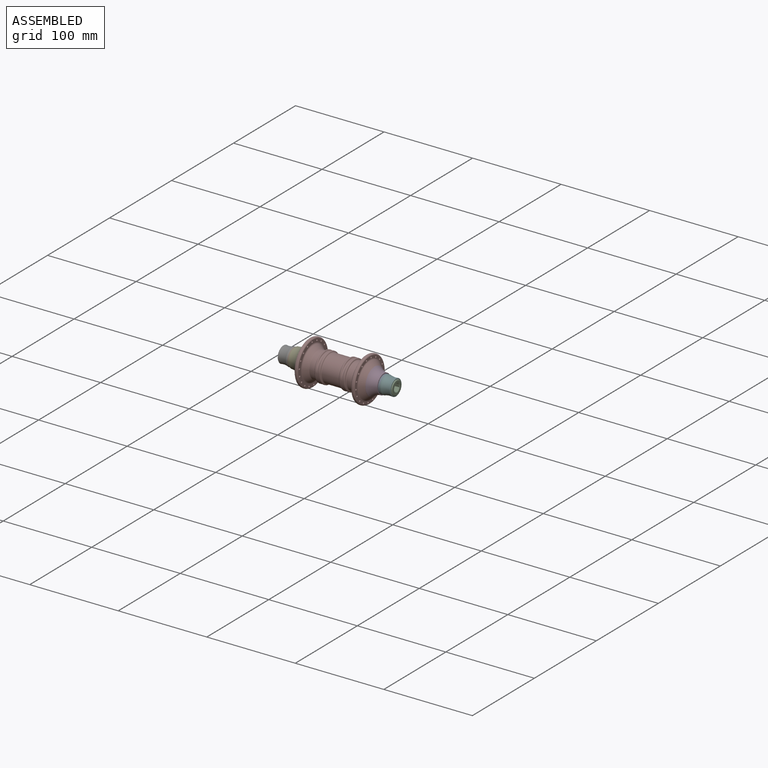
[diagram: assembled view]
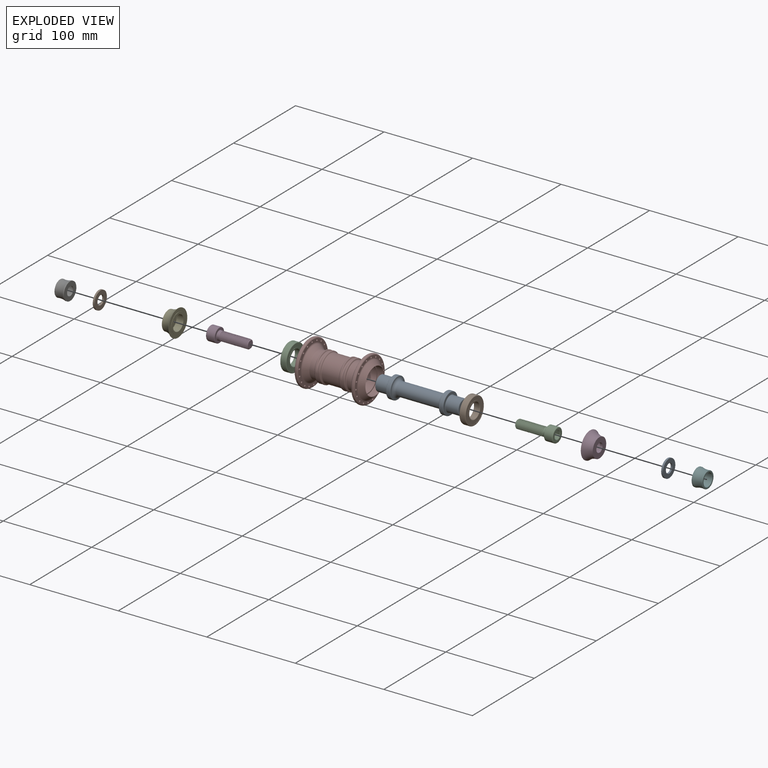
[diagram: exploded view]
GUIDED TOUR — FREECAD ASSEMBLY "Bike_wheel_Hub"

This assembly has 12 components, labeled P0..P11 below (a component is one placed body or linked part; the same part can appear more than once), held together by 11 modeled joints. A joint is a constraint between two components; its type names the relative motion it leaves free:
  FASTENED — locks the two components together rigidly (no relative motion),
  REVOLUTE — leaves rotation about the listed axis free (a hinge).
Axis/direction vectors are unit vectors and 'through' points are millimeter coordinates, both in the assembly's world frame.

MATES
  1. REVOLUTE [Revolute] "Joint": P7 <-> P0, axis (1.000, 0.000, 0.000) through (0.00, 0.00, 0.00) mm
  2. FASTENED [Fixed] "Joint001": P7 <-> P2, direction (1.000, 0.000, 0.000) through (-32.10, 0.00, 0.00) mm
  3. FASTENED [Fixed] "Joint002": P1 <-> P7, direction (1.000, 0.000, 0.000) through (32.10, 0.00, 0.00) mm
  4. FASTENED [Fixed] "Joint003": P7 <-> P3, direction (1.000, 0.000, 0.000) through (39.60, 0.00, 0.00) mm
  5. FASTENED [Fixed] "Joint004": P4 <-> P7, direction (-1.000, 0.000, 0.000) through (-39.60, 0.00, 0.00) mm
  6. FASTENED [Fixed] "Joint005": P9 <-> P4, direction (1.000, 0.000, 0.000) through (-50.20, 0.00, 0.00) mm
  7. FASTENED [Fixed] "Joint006": P8 <-> P3, direction (-1.000, 0.000, 0.000) through (50.20, 0.00, 0.00) mm
  8. FASTENED [Fixed] "Joint007": P5 <-> P8, direction (-1.000, 0.000, 0.000) through (52.20, 0.00, 0.00) mm
  9. FASTENED [Fixed] "Joint008": P9 <-> P6, direction (1.000, 0.000, 0.000) through (-52.20, 0.00, 0.00) mm
  10. FASTENED [Fixed] "Joint009": P11 <-> P6, direction (-1.000, 0.000, 0.000) through (-63.70, 0.00, 0.00) mm
  11. FASTENED [Fixed] "Joint010": P10 <-> P5, direction (1.000, 0.000, 0.000) through (63.70, 0.00, 0.00) mm

ASSEMBLY ORDER
  1. P7 — the base component [order heuristic]
  2. P0 [order heuristic]
  3. P1 [order heuristic]
  4. P2 [order heuristic]
  5. P3 [order heuristic]
  6. P4 [order heuristic]
  7. P8 [order heuristic]
  8. P9 [order heuristic]
  9. P5 [order heuristic]
  10. P6 [order heuristic]
  11. P10 [order heuristic]
  12. P11 [order heuristic]
Order-tag legend:
  [order heuristic] — this assembly is geometrically interlocked (no collision-free removal order exists), so components are listed in mate-graph order; insertion feasibility is not verified.

Of the 12 components, 6 carry a construction recipe — the FreeCAD feature program (sketches with constraints, then the solid features that consume them) that regenerates the part from scratch, quoted from this document or from the linked companion document it references; the rest are supplied as boundary geometry only. The tour below walks the components in assembly order: each is shown spotlighted twice — in the assembled view, then in the exploded view, where a leader line traces a displaced component back to its assembled socket (components that stay in place when exploded have no leader line; saturated green if recipe-attached, orange if geometry-only; every other component desaturated gray) — followed by its recipe or geometry summary and the mates that hold it.
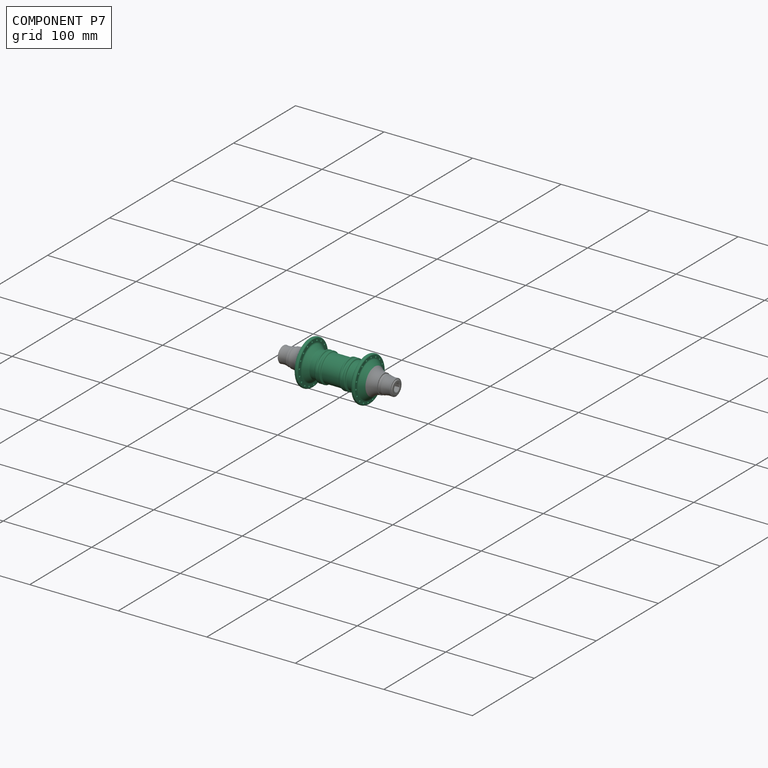
[diagram: component P7 — assembled]
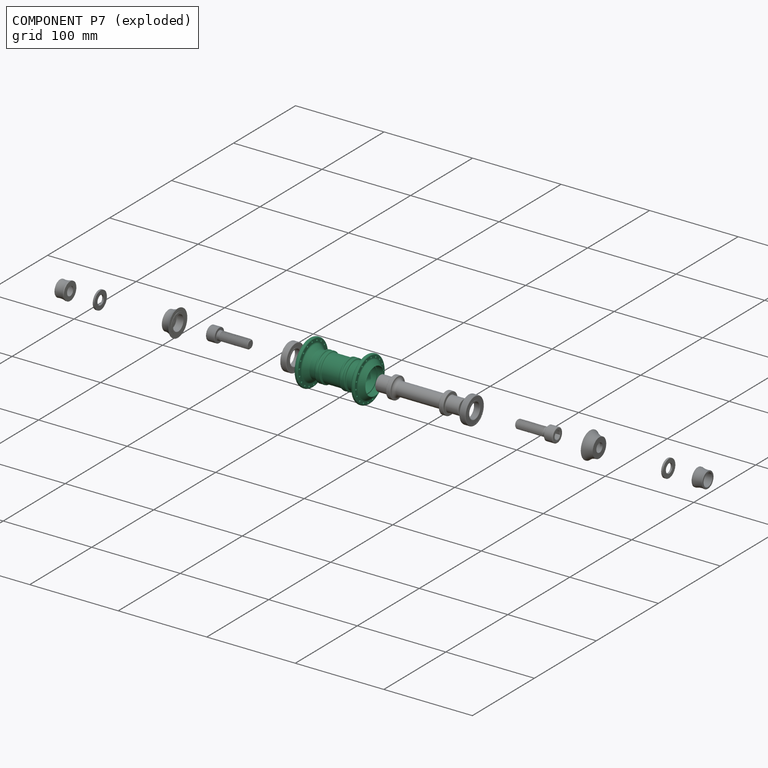
[diagram: component P7 — exploded]
COMPONENT P7 — recipe-attached ("Hub_cage001", modeled in this document).
Held by: REVOLUTE mate "Joint" to P0; FASTENED mate "Joint001" to P2; FASTENED mate "Joint002" to P1; FASTENED mate "Joint003" to P3; FASTENED mate "Joint004" to P4.
Construction recipe (the document's own serialized feature program — sketch geometry with constraints, then the solid features built on it; lengths are millimeters unless a unit is written):

FEATURE [Sketcher::SketchObject] Sketch002
  ArcFitTolerance = 1e-06
  AttachmentSupport = -> [XZ_Plane001]
  FullyConstrained = true
  MakeInternals = false
  MapMode = 5
  Placement = pos=(0,0,0) rot=(1,0,0;1.5708rad)
  sketch-geometry (31):
    g0: LineSegment StartX=0 StartY=0 StartZ=0 EndX=-39.6 EndY=0 EndZ=0
    g1: LineSegment StartX=-39.6 StartY=0 StartZ=0 EndX=-39.6 EndY=15 EndZ=0
    g2: LineSegment StartX=-39.6 StartY=15 StartZ=0 EndX=-34.668 EndY=19.4036 EndZ=0
    g3: LineSegment StartX=-34 StartY=20.8955 StartZ=0 EndX=-34 EndY=23.6 EndZ=0
    g4: LineSegment StartX=-32.6 StartY=25 StartZ=0 EndX=-31.4 EndY=25 EndZ=0
    g5: LineSegment StartX=-30 StartY=23.6 StartZ=0 EndX=-30 EndY=20.0226 EndZ=0
    g6: LineSegment StartX=-29.1711 StartY=18.4013 StartZ=0 EndX=-24.2621 EndY=14.8556 EndZ=0
    g7: LineSegment StartX=-23.6766 StartY=14.6662 StartZ=0 EndX=-18.3166 EndY=14.6662 EndZ=0
    g8: LineSegment StartX=-17.3249 StartY=15.5375 StartZ=0 EndX=-17.3131 EndY=15.6287 EndZ=0
    g9: LineSegment StartX=-16.3214 StartY=16.5 StartZ=0 EndX=-11.4387 EndY=16.5 EndZ=0
    g10: LineSegment StartX=-10.4829 StartY=15.794 StartZ=0 EndX=-10.4558 EndY=15.706 EndZ=0
    g11: LineSegment StartX=-9.5 StartY=15 StartZ=0 EndX=0 EndY=15 EndZ=0
    g12: LineSegment StartX=0 StartY=15 StartZ=0 EndX=0 EndY=0 EndZ=0
    g13: ArcOfCircle CenterX=-23.6766 CenterY=15.6662 CenterZ=0 NormalX=0 NormalY=0 NormalZ=1 AngleXU=0 Radius=1 StartAngle=4.08686 EndAngle=4.71239
    g14: GeomPoint [constr] X=-24 Y=14.6662 Z=0
    g15: ArcOfCircle CenterX=-18.3166 CenterY=15.6662 CenterZ=0 NormalX=0 NormalY=0 NormalZ=1 AngleXU=0 Radius=1 StartAngle=4.71239 EndAngle=6.1541
    g16: GeomPoint [constr] X=-17.438 Y=14.6662 Z=0
    g17: ArcOfCircle CenterX=-16.3214 CenterY=15.5 CenterZ=0 NormalX=0 NormalY=0 NormalZ=1 AngleXU=0 Radius=1 StartAngle=1.5708 EndAngle=3.01251
    g18: GeomPoint [constr] X=-17.2 Y=16.5 Z=0
    g19: ArcOfCircle CenterX=-11.4387 CenterY=15.5 CenterZ=0 NormalX=0 NormalY=0 NormalZ=1 AngleXU=0 Radius=1 StartAngle=0.298369 EndAngle=1.5708
    g20: GeomPoint [constr] X=-10.7 Y=16.5 Z=0
    g21: ArcOfCircle CenterX=-9.5 CenterY=16 CenterZ=0 NormalX=0 NormalY=0 NormalZ=1 AngleXU=0 Radius=1 StartAngle=3.43996 EndAngle=4.71239
    g22: GeomPoint [constr] X=-10.2387 Y=15 Z=0
    g23: ArcOfCircle CenterX=-28 CenterY=20.0226 CenterZ=0 NormalX=0 NormalY=0 NormalZ=1 AngleXU=0 Radius=2 StartAngle=3.14159 EndAngle=4.08686
    g24: GeomPoint [constr] X=-30 Y=19 Z=0
    g25: ArcOfCircle CenterX=-31.4 CenterY=23.6 CenterZ=0 NormalX=0 NormalY=0 NormalZ=1 AngleXU=0 Radius=1.4 StartAngle=-9e-16 EndAngle=1.5708
    g26: GeomPoint [constr] X=-30 Y=25 Z=0
    g27: ArcOfCircle CenterX=-32.6 CenterY=23.6 CenterZ=0 NormalX=0 NormalY=0 NormalZ=1 AngleXU=0 Radius=1.4 StartAngle=1.5708 EndAngle=3.14159
    g28: GeomPoint [constr] X=-34 Y=25 Z=0
    g29: ArcOfCircle CenterX=-36 CenterY=20.8955 CenterZ=0 NormalX=0 NormalY=0 NormalZ=1 AngleXU=0 Radius=2 StartAngle=5.44124 EndAngle=6.28319
    g30: GeomPoint [constr] X=-34 Y=20 Z=0
  constraints (74):
    c: Coincident(g-1,g0)
    c: PointOnObject(g0,g-1)
    c: Coincident(g0,g1)
    c: Vertical(g1)
    c: Coincident(g1,g2)
    c: Vertical(g3)
    c: Horizontal(g4)
    c: Vertical(g5)
    c: Horizontal(g7)
    c: Horizontal(g9)
    c: Horizontal(g11)
    c: Coincident(g11,g12)
    c: Coincident(g12,g0)
    c: Vertical(g12)
    c: DistanceY(g1,g1) = 15
    c: DistanceX(g0,g0) = 39.6
    c: DistanceY(g-1,g30) = 20
    c: DistanceY(g-1,g28) = 25
    c: DistanceY(g-1,g24) = 19
    c: DistanceX(g28,g-1) = 34
    c: DistanceX(g28,g26) = 4
    c: DistanceX(g14,g-1) = 24
    c: DistanceX(g20,g-1) = 10.7
    c: Distance(g18,g20) = 6.5
    c: DistanceY(g-1,g20) = 16.5
    c: Equal(g1,g12)
    c: PointOnObject(g14,g6)
    c: PointOnObject(g14,g7)
    c: Tangent(g6,g13) = -1.5708
    c: Tangent(g7,g13) = -1.5708
    c: PointOnObject(g16,g7)
    c: PointOnObject(g16,g8)
    c: Tangent(g7,g15) = -1.5708
    c: Tangent(g8,g15) = -1.5708
    c: PointOnObject(g18,g8)
    c: PointOnObject(g18,g9)
    c: Tangent(g8,g17) = 1.5708
    c: Tangent(g9,g17) = 1.5708
    c: PointOnObject(g20,g9)
    c: PointOnObject(g20,g10)
    c: Tangent(g9,g19) = 1.5708
    c: Tangent(g10,g19) = 1.5708
    c: PointOnObject(g22,g10)
    c: PointOnObject(g22,g11)
    c: Tangent(g10,g21) = -1.5708
    c: Tangent(g11,g21) = -1.5708
    c: Radius(g13) = 1
    c: Equal(g13,g15)
    c: Equal(g15,g17)
    c: Equal(g17,g19)
    c: Equal(g19,g21)
    c: Equal(g8,g10)
    c: DistanceX(g11,g11) = 9.5
    c: DistanceX(g7,g7) = 5.36
    c: PointOnObject(g24,g5)
    c: PointOnObject(g24,g6)
    c: Tangent(g5,g23) = -1.5708
    c: Tangent(g6,g23) = -1.5708
    c: PointOnObject(g26,g4)
    c: PointOnObject(g26,g5)
    c: Tangent(g4,g25) = 1.5708
    c: Tangent(g5,g25) = 1.5708
    c: PointOnObject(g28,g3)
    c: PointOnObject(g28,g4)
    c: Tangent(g3,g27) = 1.5708
    c: Tangent(g4,g27) = 1.5708
    c: PointOnObject(g30,g2)
    c: PointOnObject(g30,g3)
    c: Tangent(g2,g29) = -1.5708
    c: Tangent(g3,g29) = -1.5708
    c: Radius(g23) = 2
    c: Radius(g25) = 1.4
    c: Radius(g27) = 1.4
    c: Radius(g29) = 2
FEATURE [PartDesign::Revolution] Revolution001
  Angle = 360
  Angle2 = 60
  Axis = (1,0,0)
  Base = (0,0,0)
  Placement = pos=(0,0,0) rot=(1,0,0;1.5708rad)
  Profile = -> Sketch002
  ReferenceAxis = -> X_Axis001
  Refine = true
  Suppressed = false
  Type = 0
FEATURE [Sketcher::SketchObject] Sketch003
  ArcFitTolerance = 1e-06
  AttachmentSupport = -> [Revolution001]
  FullyConstrained = true
  MakeInternals = false
  MapMode = 5
  Placement = pos=(-39.6,0,0) rot=(0.707107,0,-0.707107;3.14159rad)
  sketch-geometry (1):
    g0: Circle CenterX=0 CenterY=0 CenterZ=0 NormalX=0 NormalY=0 NormalZ=1 AngleXU=0 Radius=15
  constraints (2):
    c: Diameter(g0) = 30
    c: Coincident(g0,g-1)
FEATURE [PartDesign::Pocket] Pocket001
  BaseFeature = -> Revolution001
  Direction = (1,0,2e-16)
  Length = 7.5
  Length2 = 5
  Placement = pos=(0,0,0) rot=(1,0,0;1.5708rad)
  Profile = -> Sketch003
  ReferenceAxis = -> Sketch003 [N_Axis]
  Refine = true
  Suppressed = false
  Type = 0
FEATURE [Sketcher::SketchObject] Sketch004
  ArcFitTolerance = 1e-06
  AttachmentSupport = -> [Pocket001]
  FullyConstrained = true
  MakeInternals = false
  MapMode = 5
  Placement = pos=(0,0,0) rot=(0.707107,0,0.707107;3.14159rad)
  sketch-geometry (1):
    g0: Circle CenterX=0 CenterY=0 CenterZ=0 NormalX=0 NormalY=0 NormalZ=1 AngleXU=0 Radius=14
  constraints (2):
    c: Diameter(g0) = 28
    c: Coincident(g0,g-1)
FEATURE [PartDesign::Pocket] Pocket002
  BaseFeature = -> Pocket001
  Direction = (-1,0,2e-16)
  Length = 5
  Length2 = 5
  Placement = pos=(0,0,0) rot=(1,0,0;1.5708rad)
  Profile = -> Sketch004
  ReferenceAxis = -> Sketch004 [N_Axis]
  Refine = true
  Suppressed = false
  Type = 1
FEATURE [PartDesign::Plane] DatumPlane
  AttachmentOffset = pos=(0,0,-13.95) rot=(0,0,1;0rad)
  AttachmentSupport = -> [Pocket002]
  Length = 60
  MapMode = 5
  Placement = pos=(-13.95,0,3.1e-15) rot=(0.707107,0,0.707107;3.14159rad)
  ResizeMode = 0
  Width = 60
FEATURE [Sketcher::SketchObject] Sketch005
  ArcFitTolerance = 1e-06
  AttachmentSupport = -> [DatumPlane]
  FullyConstrained = true
  MakeInternals = false
  MapMode = 5
  Placement = pos=(-13.95,0,3.1e-15) rot=(0.707107,0,0.707107;3.14159rad)
  sketch-geometry (5):
    g0: Ellipse CenterX=0 CenterY=0 CenterZ=0 NormalX=0 NormalY=0 NormalZ=1 MajorRadius=18.1 MinorRadius=16.4 AngleXU=-1.5708
    g1: LineSegment [constr] StartX=6.27002e-06 StartY=-18.1 StartZ=0 EndX=-6.27002e-06 EndY=18.1 EndZ=0
    g2: LineSegment [constr] StartX=16.4 StartY=5.68113e-06 StartZ=0 EndX=-16.4 EndY=-5.68113e-06 EndZ=0
    g3: GeomPoint [constr] X=2.65292e-06 Y=-7.65833 Z=0
    g4: GeomPoint [constr] X=-2.65292e-06 Y=7.65833 Z=0
  constraints (5):
    c: InternalAlignment(g1-g4 -> g0) x4
    c: Distance(g0,g2) = 16.4
    c: Angle(g2) = 3.14159
    c: Distance(g0,g1) = 18.1
    c: Coincident(g0,g-1)
FEATURE [Sketcher::SketchObject] Sketch006
  ArcFitTolerance = 1e-06
  AttachmentSupport = -> [XY_Plane001]
  ExternalGeometry = -> [Sketch005]
  FullyConstrained = true
  MakeInternals = false
  MapMode = 5
  sketch-geometry (1):
    g0: Circle CenterX=-13.95 CenterY=18.1 CenterZ=0 NormalX=0 NormalY=0 NormalZ=1 AngleXU=0 Radius=1.5
  constraints (2):
    c: Diameter(g0) = 3
    c: Coincident(g0,g-4)
FEATURE [PartDesign::SubtractivePipe] SubtractivePipe
  AuxilleryCurvelinear = true
  AuxillerySpineTangent = false
  BaseFeature = -> Pocket002
  Binormal = (0,0,0)
  Mode = 0
  Placement = pos=(0,0,0) rot=(1,0,0;1.5708rad)
  Profile = -> Sketch006
  Refine = true
  Spine = -> Sketch005
  SpineTangent = false
  Suppressed = false
  Transformation = 0
  Transition = 0
FEATURE [PartDesign::Mirrored] Mirrored001
  BaseFeature = -> SubtractivePipe
  MirrorPlane = -> Sketch006 [V_Axis]
  Originals = -> [SubtractivePipe]
  Placement = pos=(0,0,0) rot=(1,0,0;1.5708rad)
  Refine = true
  Suppressed = false
  TransformMode = 1
FEATURE [Sketcher::SketchObject] Sketch007
  ArcFitTolerance = 1e-06
  AttachmentSupport = -> [Mirrored001]
  FullyConstrained = true
  MakeInternals = false
  MapMode = 5
  Placement = pos=(-34,0,0) rot=(0.707107,0,-0.707107;3.14159rad)
  sketch-geometry (1):
    g0: Circle CenterX=0 CenterY=22.2 CenterZ=0 NormalX=0 NormalY=0 NormalZ=1 AngleXU=0 Radius=1.1
  constraints (3):
    c: Diameter(g0) = 2.2
    c: PointOnObject(g0,g-2)
    c: DistanceY(g-1,g0) = 22.2
FEATURE [PartDesign::Pocket] Pocket003
  BaseFeature = -> Mirrored001
  Direction = (1,0,2e-16)
  Length = 0
  Length2 = 5
  Placement = pos=(0,0,0) rot=(1,0,0;1.5708rad)
  Profile = -> Sketch007
  ReferenceAxis = -> Sketch007 [N_Axis]
  Refine = true
  Suppressed = false
  Type = 3
  UpToFace = -> Mirrored001 [Face14]
FEATURE [PartDesign::PolarPattern] PolarPattern
  Angle = 360
  Axis = -> Sketch007 [N_Axis]
  BaseFeature = -> Pocket003
  Mode = 0
  Occurrences = 18
  Offset = 120
  Originals = -> [Pocket003]
  Placement = pos=(0,0,0) rot=(1,0,0;1.5708rad)
  Refine = true
  Suppressed = false
  TransformMode = 0
FEATURE [Sketcher::SketchObject] Sketch008
  ArcFitTolerance = 1e-06
  AttachmentSupport = -> [PolarPattern]
  FullyConstrained = true
  MakeInternals = false
  MapMode = 5
  Placement = pos=(34,0,0) rot=(0.707107,0,0.707107;3.14159rad)
  sketch-geometry (2):
    g0: Circle CenterX=-3.85499 CenterY=21.8627 CenterZ=0 NormalX=0 NormalY=0 NormalZ=1 AngleXU=0 Radius=1.1
    g1: LineSegment [constr] StartX=-3.85499 StartY=21.8627 StartZ=0 EndX=0 EndY=0 EndZ=0
  constraints (5):
    c: Diameter(g0) = 2.2
    c: Coincident(g1,g0)
    c: Coincident(g1,g-1)
    c: Distance(g1,g1) = 22.2
    c: Angle(g-2,g1) = 0.174533
FEATURE [PartDesign::Pocket] Pocket004
  BaseFeature = -> PolarPattern
  Direction = (-1,0,2e-16)
  Length = 0
  Length2 = 5
  Placement = pos=(0,0,0) rot=(1,0,0;1.5708rad)
  Profile = -> Sketch008
  ReferenceAxis = -> Sketch008 [N_Axis]
  Refine = true
  Suppressed = false
  Type = 3
  UpToFace = -> PolarPattern [Face53]
FEATURE [PartDesign::PolarPattern] PolarPattern001
  Angle = 360
  Axis = -> X_Axis001
  BaseFeature = -> Pocket004
  Mode = 0
  Occurrences = 18
  Offset = 120
  Originals = -> [Pocket004]
  Placement = pos=(0,0,0) rot=(1,0,0;1.5708rad)
  Refine = true
  Suppressed = false
  TransformMode = 0
FEATURE [PartDesign::Fillet] Fillet
  Base = -> PolarPattern001 [Edge39,Edge41,Edge15,Edge13]
  BaseFeature = -> PolarPattern001
  Placement = pos=(0,0,0) rot=(1,0,0;1.5708rad)
  Radius = 0.3
  Refine = true
  SupportTransform = false
  Suppressed = false
  UseAllEdges = false
FEATURE [PartDesign::Body] Body001  label="Hub_cage"
  AllowCompound = false
  Group = -> [Sketch002,Revolution001,Sketch003,Pocket001,Sketch004,Pocket002,DatumPlane,Sketch005,Sketch006,SubtractivePipe,Mirrored001,Sketch007,Pocket003,PolarPattern,Sketch008,Pocket004,PolarPattern001,Fillet]
  Origin = -> Origin001
  Tip = -> Fillet
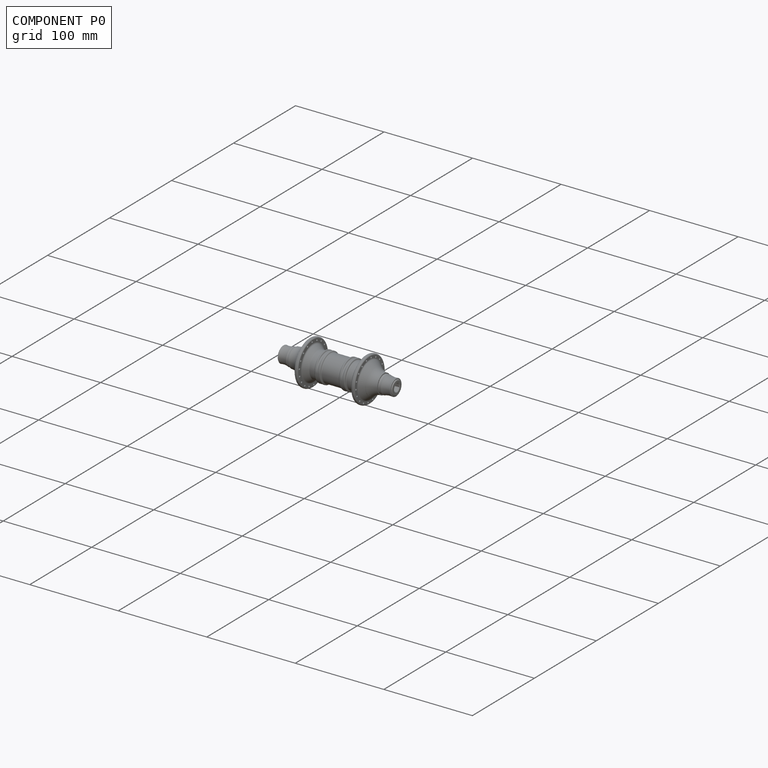
[diagram: component P0 — assembled]
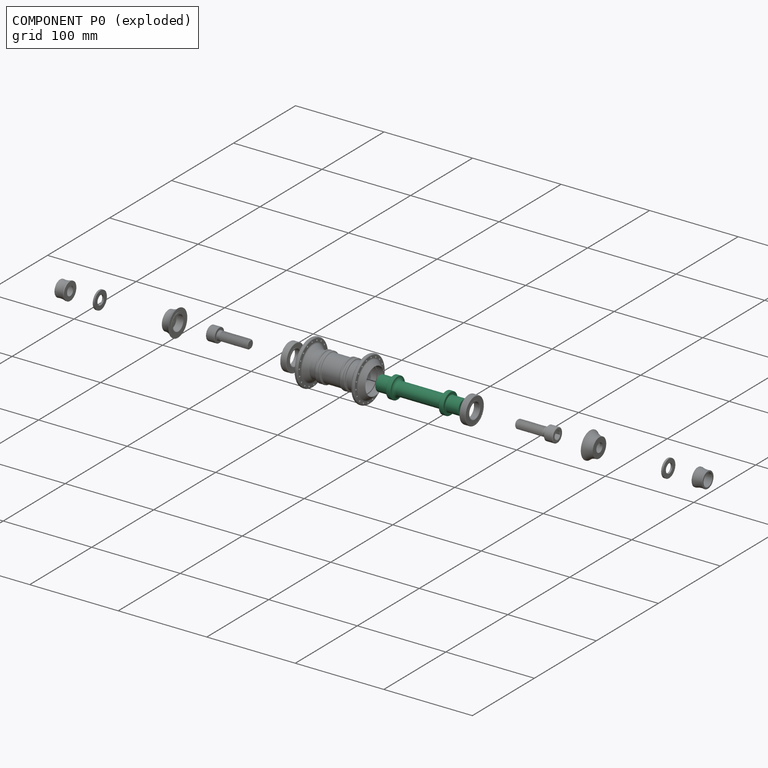
[diagram: component P0 — exploded]
COMPONENT P0 — recipe-attached ("Axle001", modeled in this document).
Held by: REVOLUTE mate "Joint" to P7.
Construction recipe (the document's own serialized feature program — sketch geometry with constraints, then the solid features built on it; lengths are millimeters unless a unit is written):

FEATURE [Sketcher::SketchObject] Sketch
  ArcFitTolerance = 1e-06
  AttachmentSupport = -> [XZ_Plane]
  FullyConstrained = true
  MakeInternals = false
  MapMode = 5
  Placement = pos=(0,0,0) rot=(1,0,0;1.5708rad)
  sketch-geometry (19):
    g0: LineSegment StartX=0 StartY=0 StartZ=0 EndX=-47 EndY=0 EndZ=0
    g1: LineSegment StartX=-47 StartY=0 StartZ=0 EndX=-47 EndY=8 EndZ=0
    g2: LineSegment StartX=-46.5 StartY=8.5 StartZ=0 EndX=-32.8 EndY=8.5 EndZ=0
    g3: LineSegment StartX=-32.3 StartY=9 StartZ=0 EndX=-32.3 EndY=11.5 EndZ=0
    g4: LineSegment StartX=-31.8 StartY=12 StartZ=0 EndX=-27.8 EndY=12 EndZ=0
    g5: LineSegment StartX=-27.3 StartY=11.5 StartZ=0 EndX=-27.3 EndY=11 EndZ=0
    g6: LineSegment StartX=-23.8 StartY=7.5 StartZ=0 EndX=0 EndY=7.5 EndZ=0
    g7: LineSegment StartX=0 StartY=0 StartZ=0 EndX=0 EndY=7.5 EndZ=0
    g8: ArcOfCircle CenterX=-27.8 CenterY=11.5 CenterZ=0 NormalX=0 NormalY=0 NormalZ=1 AngleXU=0 Radius=0.5 StartAngle=-1.8e-15 EndAngle=1.5708
    g9: GeomPoint [constr] X=-27.3 Y=12 Z=0
    g10: ArcOfCircle CenterX=-23.8 CenterY=11 CenterZ=0 NormalX=0 NormalY=0 NormalZ=1 AngleXU=0 Radius=3.5 StartAngle=3.14159 EndAngle=4.71239
    g11: GeomPoint [constr] X=-27.3 Y=7.5 Z=0
    g12: ArcOfCircle CenterX=-32.8 CenterY=9 CenterZ=0 NormalX=0 NormalY=0 NormalZ=1 AngleXU=0 Radius=0.5 StartAngle=4.71239 EndAngle=6.28319
    g13: GeomPoint [constr] X=-32.3 Y=8.5 Z=0
    g14: ArcOfCircle CenterX=-31.8 CenterY=11.5 CenterZ=0 NormalX=0 NormalY=0 NormalZ=1 AngleXU=0 Radius=0.5 StartAngle=1.5708 EndAngle=3.14159
    g15: GeomPoint [constr] X=-32.3 Y=12 Z=0
    g16: ArcOfCircle [constr] CenterX=-46.5 CenterY=8 CenterZ=0 NormalX=0 NormalY=0 NormalZ=1 AngleXU=0 Radius=0.5 StartAngle=1.5708 EndAngle=3.14159
    g17: GeomPoint [constr] X=-47 Y=8.5 Z=0
    g18: LineSegment StartX=-46.5 StartY=8.5 StartZ=0 EndX=-47 EndY=8 EndZ=0
  constraints (45):
    c: Coincident(g-1,g0)
    c: PointOnObject(g0,g-1)
    c: Coincident(g0,g1)
    c: Vertical(g1)
    c: Horizontal(g2)
    c: Vertical(g3)
    c: Horizontal(g4)
    c: Vertical(g5)
    c: PointOnObject(g6,g-2)
    c: Horizontal(g6)
    c: Coincident(g7,g0)
    c: Coincident(g7,g6)
    c: DistanceY(g7,g7) = 7.5
    c: DistanceY(g1,g17) = 8.5
    c: DistanceX(g0,g0) = 47
    c: DistanceY(g-1,g15) = 12
    c: DistanceX(g15,g9) = 5
    c: DistanceX(g15,g-1) = 32.3
    c: PointOnObject(g9,g4)
    c: PointOnObject(g9,g5)
    c: Tangent(g4,g8) = 1.5708
    c: Tangent(g5,g8) = 1.5708
    c: PointOnObject(g11,g5)
    c: PointOnObject(g11,g6)
    c: Tangent(g5,g10) = -1.5708
    c: Tangent(g6,g10) = -1.5708
    c: PointOnObject(g13,g2)
    c: PointOnObject(g13,g3)
    c: Tangent(g2,g12) = -1.5708
    c: Tangent(g3,g12) = -1.5708
    c: PointOnObject(g15,g3)
    c: PointOnObject(g15,g4)
    c: Tangent(g3,g14) = 1.5708
    c: Tangent(g4,g14) = 1.5708
    c: Radius(g10) = 3.5
    c: Radius(g8) = 0.5
    c: Radius(g14) = 0.5
    c: Radius(g12) = 0.5
    c: PointOnObject(g17,g1)
    c: PointOnObject(g17,g2)
    c: Tangent(g1,g16) = 1.5708
    c: Tangent(g2,g16) = 1.5708
    c: Coincident(g18,g1)
    c: Coincident(g18,g2)
    c: Radius(g16) = 0.5
FEATURE [PartDesign::Revolution] Revolution
  Angle = 360
  Angle2 = 60
  Axis = (1,0,0)
  Base = (0,0,0)
  Placement = pos=(0,0,0) rot=(1,0,0;1.5708rad)
  Profile = -> Sketch
  ReferenceAxis = -> X_Axis
  Refine = true
  Suppressed = false
  Type = 0
FEATURE [Sketcher::SketchObject] Sketch001
  ArcFitTolerance = 1e-06
  AttachmentSupport = -> [Revolution]
  FullyConstrained = true
  MakeInternals = false
  MapMode = 5
  Placement = pos=(-47,0,0) rot=(0.707107,0,-0.707107;3.14159rad)
  sketch-geometry (1):
    g0: Circle CenterX=0 CenterY=0 CenterZ=0 NormalX=0 NormalY=0 NormalZ=1 AngleXU=0 Radius=5
  constraints (2):
    c: Diameter(g0) = 10
    c: Coincident(g0,g-1)
FEATURE [PartDesign::Pocket] Pocket
  BaseFeature = -> Revolution
  Direction = (1,0,2e-16)
  Length = 5
  Length2 = 5
  Placement = pos=(0,0,0) rot=(1,0,0;1.5708rad)
  Profile = -> Sketch001
  ReferenceAxis = -> Sketch001 [N_Axis]
  Refine = true
  Suppressed = false
  Type = 1
FEATURE [PartDesign::Mirrored] Mirrored
  BaseFeature = -> Pocket
  MirrorPlane = -> YZ_Plane
  Originals = -> [Pocket]
  Placement = pos=(0,0,0) rot=(1,0,0;1.5708rad)
  Refine = true
  Suppressed = false
  TransformMode = 1
FEATURE [PartDesign::Body] Body  label="Axle"
  AllowCompound = false
  Group = -> [Sketch,Revolution,Sketch001,Pocket,Mirrored]
  Origin = -> Origin
  Tip = -> Mirrored
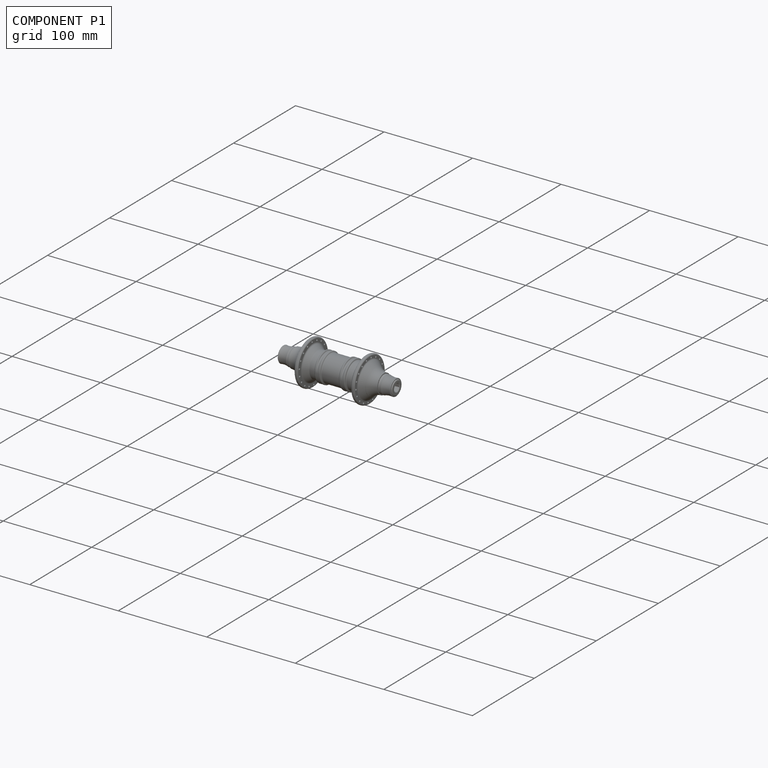
[diagram: component P1 — assembled]
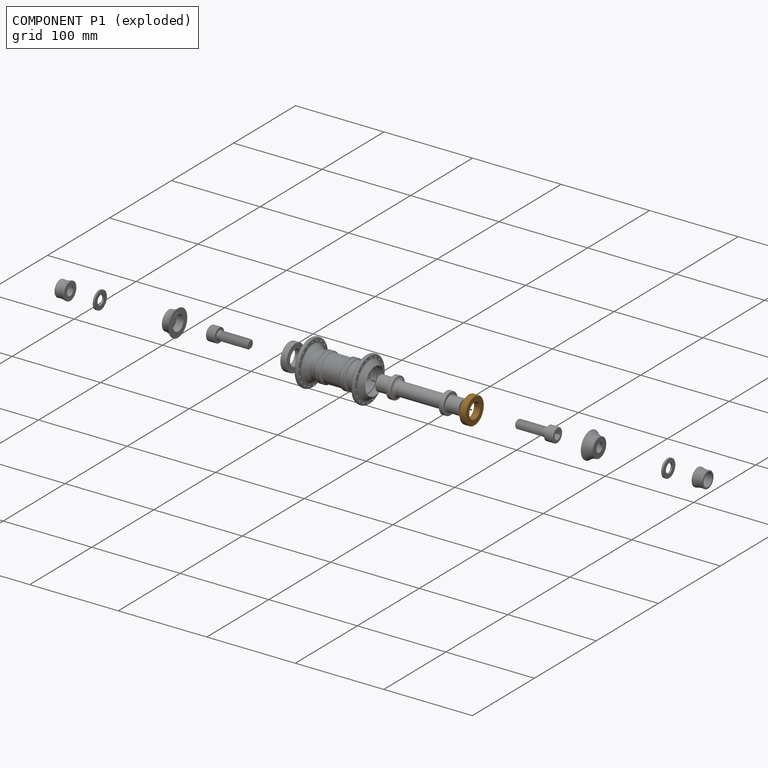
[diagram: component P1 — exploded]
COMPONENT P1 — geometry summary ("Ball_Bearing001"; no construction recipe available for this part):
  bounding box: 30.0 x 30.0 x 7.0 mm
  tessellated surface: 117,994 triangles
  volume: 2172 mm^3 (34% of its bounding box)
  symmetry: mirror-symmetric across its x mid-plane
Held by: FASTENED mate "Joint002" to P7.
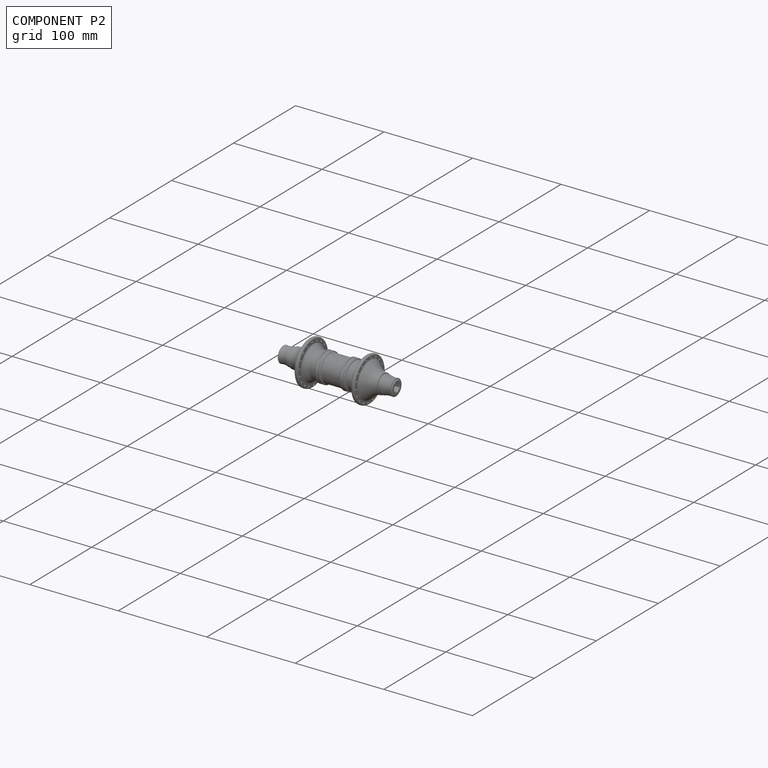
[diagram: component P2 — assembled]
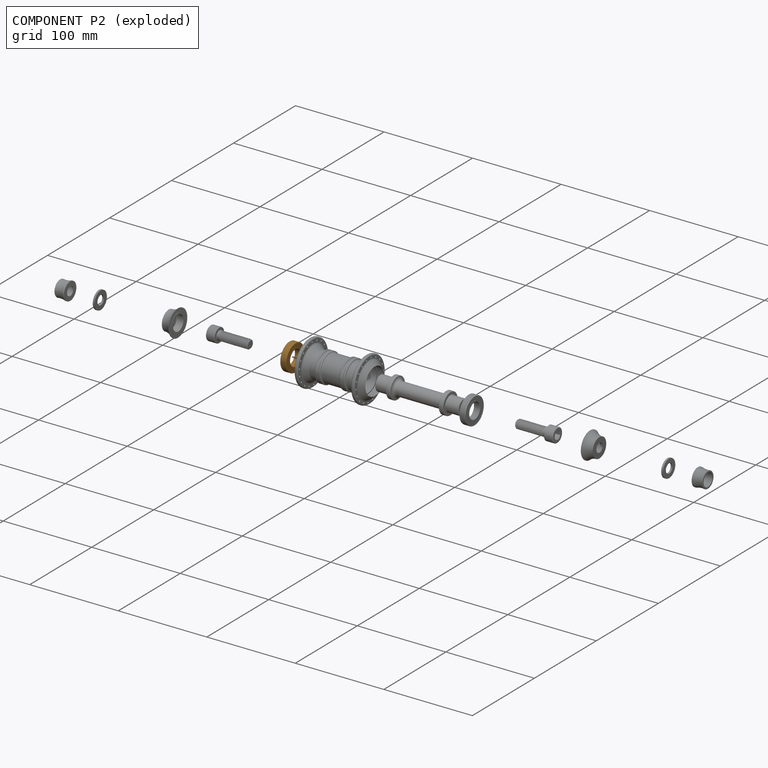
[diagram: component P2 — exploded]
COMPONENT P2 — geometry summary ("Ball_Bearing002"; no construction recipe available for this part):
  bounding box: 30.0 x 30.0 x 7.0 mm
  tessellated surface: 117,994 triangles
  volume: 2172 mm^3 (34% of its bounding box)
  symmetry: mirror-symmetric across its x mid-plane
Held by: FASTENED mate "Joint001" to P7.
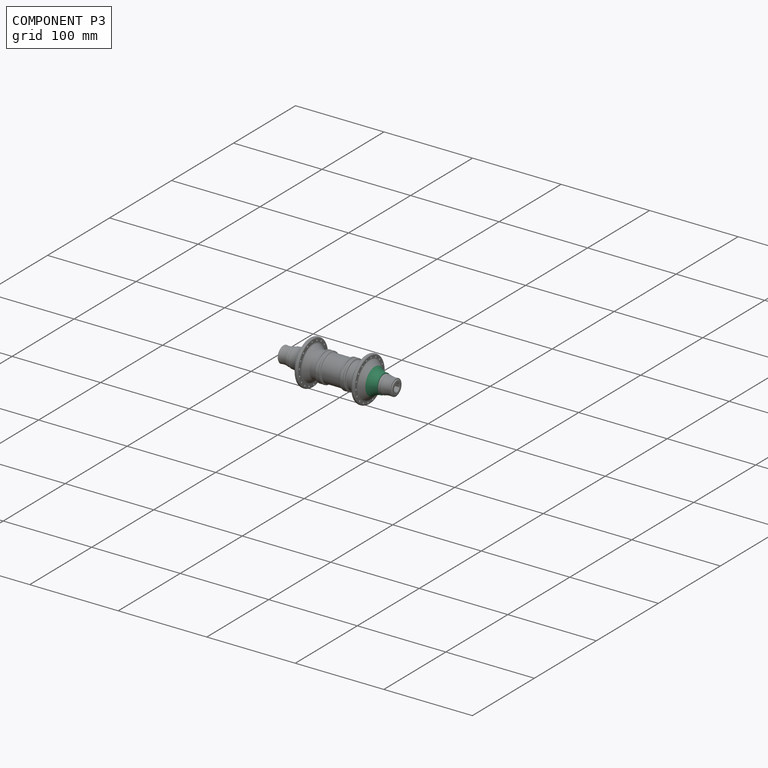
[diagram: component P3 — assembled]
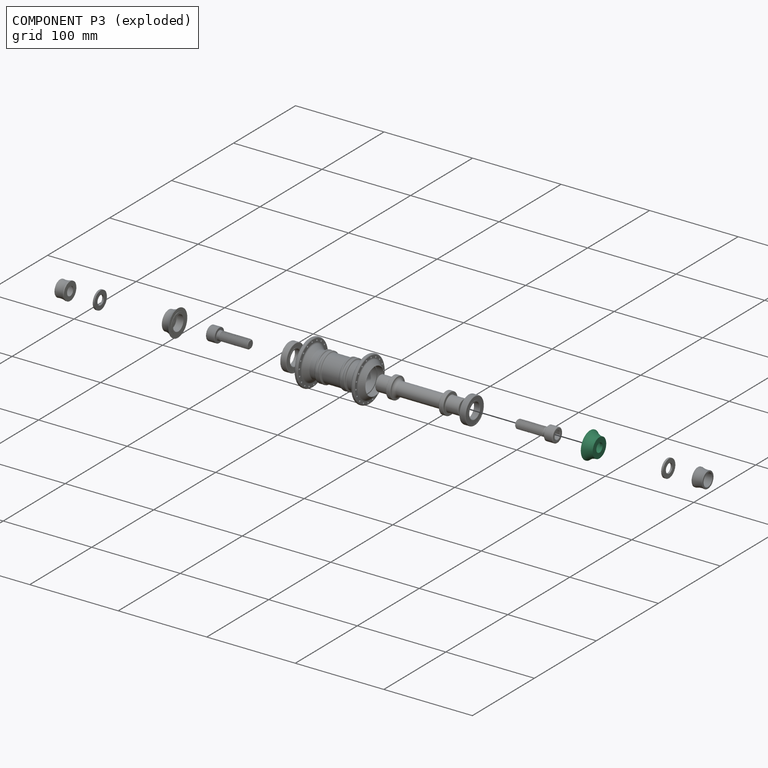
[diagram: component P3 — exploded]
COMPONENT P3 — recipe-attached ("Cover_bearing001", modeled in this document).
Held by: FASTENED mate "Joint003" to P7; FASTENED mate "Joint006" to P8.
Construction recipe (the document's own serialized feature program — sketch geometry with constraints, then the solid features built on it; lengths are millimeters unless a unit is written):

FEATURE [Sketcher::SketchObject] Sketch009
  ArcFitTolerance = 1e-06
  AttachmentSupport = -> [XZ_Plane002]
  FullyConstrained = true
  MakeInternals = false
  MapMode = 5
  Placement = pos=(0,0,0) rot=(1,0,0;1.5708rad)
  sketch-geometry (8):
    g0: LineSegment StartX=0 StartY=0 StartZ=0 EndX=0 EndY=10.9 EndZ=0
    g1: LineSegment StartX=0 StartY=10.9 StartZ=0 EndX=0.3 EndY=10.9 EndZ=0
    g2: LineSegment StartX=0.3 StartY=10.9 StartZ=0 EndX=0.3 EndY=15 EndZ=0
    g3: LineSegment StartX=0.3 StartY=15 StartZ=0 EndX=0.5 EndY=15 EndZ=0
    g4: LineSegment StartX=0 StartY=0 StartZ=0 EndX=10.9 EndY=0 EndZ=0
    g5: LineSegment StartX=10.9 StartY=0 StartZ=0 EndX=10.9 EndY=10.9 EndZ=0
    g6: ArcOfCircle CenterX=10.9 CenterY=26.1403 CenterZ=0 NormalX=0 NormalY=0 NormalZ=1 AngleXU=0 Radius=15.2403 StartAngle=3.96134 EndAngle=4.71239
    g7: LineSegment [constr] StartX=10.9 StartY=10.9 StartZ=0 EndX=20 EndY=10.9 EndZ=0
  constraints (24):
    c: Coincident(g-1,g0)
    c: PointOnObject(g0,g-2)
    c: Coincident(g0,g1)
    c: Horizontal(g1)
    c: Coincident(g1,g2)
    c: Vertical(g2)
    c: Coincident(g2,g3)
    c: Horizontal(g3)
    c: Coincident(g0,g4)
    c: PointOnObject(g4,g-1)
    c: Coincident(g4,g5)
    c: Vertical(g5)
    c: DistanceY(g0,g0) = 10.9
    c: DistanceX(g1,g1) = 0.3
    c: DistanceX(g3,g3) = 0.2
    c: DistanceX(g4,g4) = 10.9
    c: Coincident(g6,g5)
    c: Coincident(g6,g3)
    c: Coincident(g7,g5)
    c: Horizontal(g7)
    c: Tangent(g7,g6)
    c: Horizontal(g5,g1)
    c: DistanceY(g-1,g2) = 15
    c: DistanceX(g-1,g7) = 20
FEATURE [PartDesign::Revolution] Revolution002
  Angle = 360
  Angle2 = 60
  Axis = (1,0,0)
  Base = (0,0,0)
  Placement = pos=(0,0,0) rot=(1,0,0;1.5708rad)
  Profile = -> Sketch009
  ReferenceAxis = -> X_Axis002
  Refine = true
  Suppressed = false
  Type = 0
FEATURE [Sketcher::SketchObject] Sketch010
  ArcFitTolerance = 1e-06
  AttachmentSupport = -> [Revolution002]
  FullyConstrained = true
  MakeInternals = false
  MapMode = 5
  Placement = pos=(0,0,0) rot=(0.707107,0,-0.707107;3.14159rad)
  sketch-geometry (1):
    g0: Circle CenterX=0 CenterY=0 CenterZ=0 NormalX=0 NormalY=0 NormalZ=1 AngleXU=0 Radius=8.5
  constraints (2):
    c: Diameter(g0) = 17
    c: Coincident(g0,g-1)
FEATURE [PartDesign::Pocket] Pocket005
  BaseFeature = -> Revolution002
  Direction = (1,0,2e-16)
  Length = 8
  Length2 = 5
  Placement = pos=(0,0,0) rot=(1,0,0;1.5708rad)
  Profile = -> Sketch010
  ReferenceAxis = -> Sketch010 [N_Axis]
  Refine = true
  Suppressed = false
  Type = 0
FEATURE [Sketcher::SketchObject] Sketch011
  ArcFitTolerance = 1e-06
  AttachmentSupport = -> [Pocket005]
  FullyConstrained = true
  MakeInternals = false
  MapMode = 5
  Placement = pos=(10.9,0,0) rot=(0.707107,0,0.707107;3.14159rad)
  sketch-geometry (1):
    g0: Circle CenterX=0 CenterY=0 CenterZ=0 NormalX=0 NormalY=0 NormalZ=1 AngleXU=0 Radius=5
  constraints (2):
    c: Diameter(g0) = 10
    c: Coincident(g0,g-1)
FEATURE [PartDesign::Pocket] Pocket006
  BaseFeature = -> Pocket005
  Direction = (-1,0,2e-16)
  Length = 5
  Length2 = 5
  Placement = pos=(0,0,0) rot=(1,0,0;1.5708rad)
  Profile = -> Sketch011
  ReferenceAxis = -> Sketch011 [N_Axis]
  Refine = true
  Suppressed = false
  Type = 1
FEATURE [PartDesign::Body] Body002  label="Cover_bearing"
  AllowCompound = false
  Group = -> [Sketch009,Revolution002,Sketch010,Pocket005,Sketch011,Pocket006]
  Origin = -> Origin002
  Tip = -> Pocket006
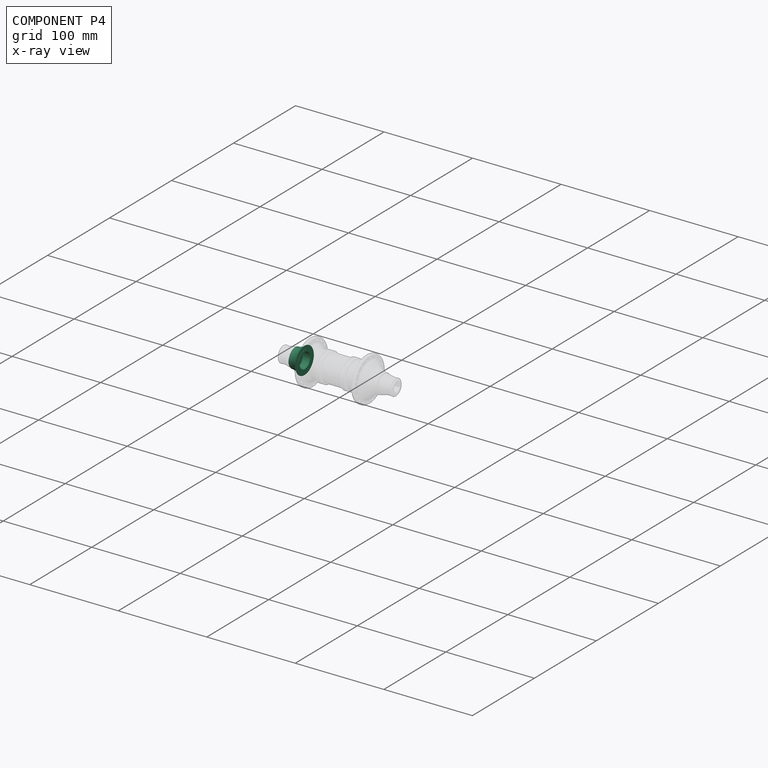
[diagram: component P4 — x-ray view]
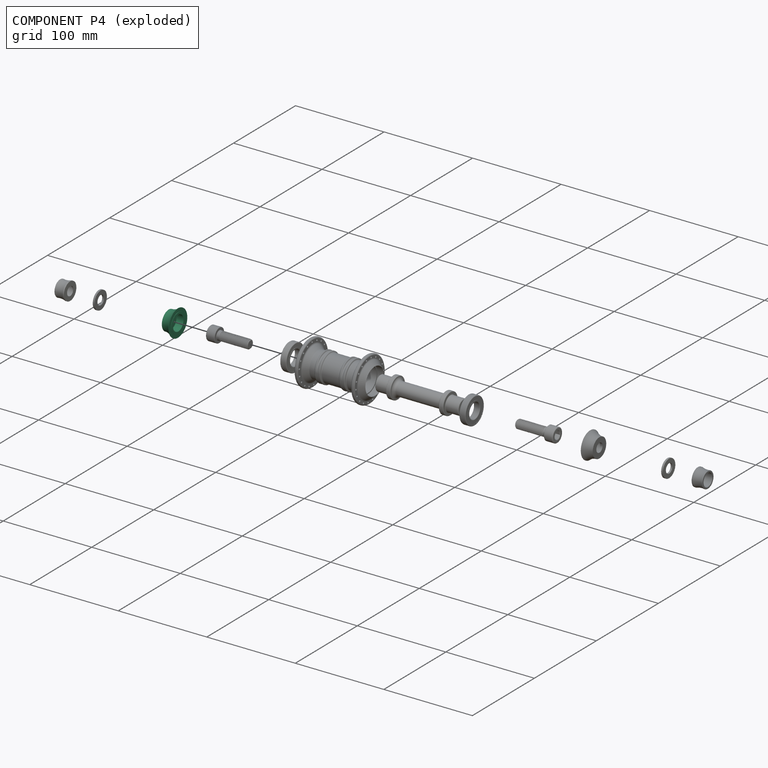
[diagram: component P4 — exploded]
COMPONENT P4 — same part as P3; its construction recipe is shown at P3.
Held by: FASTENED mate "Joint004" to P7; FASTENED mate "Joint005" to P9.
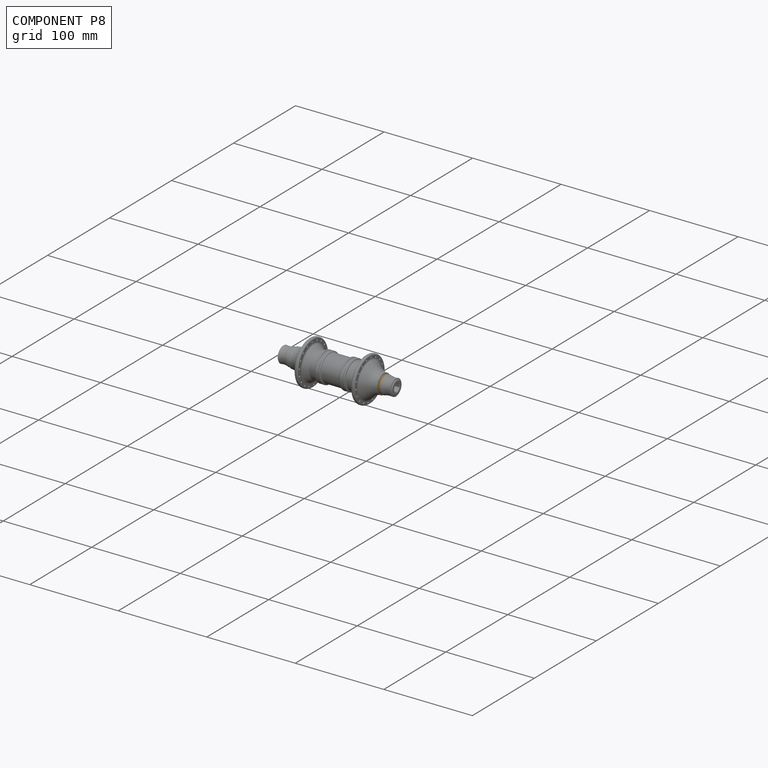
[diagram: component P8 — assembled]
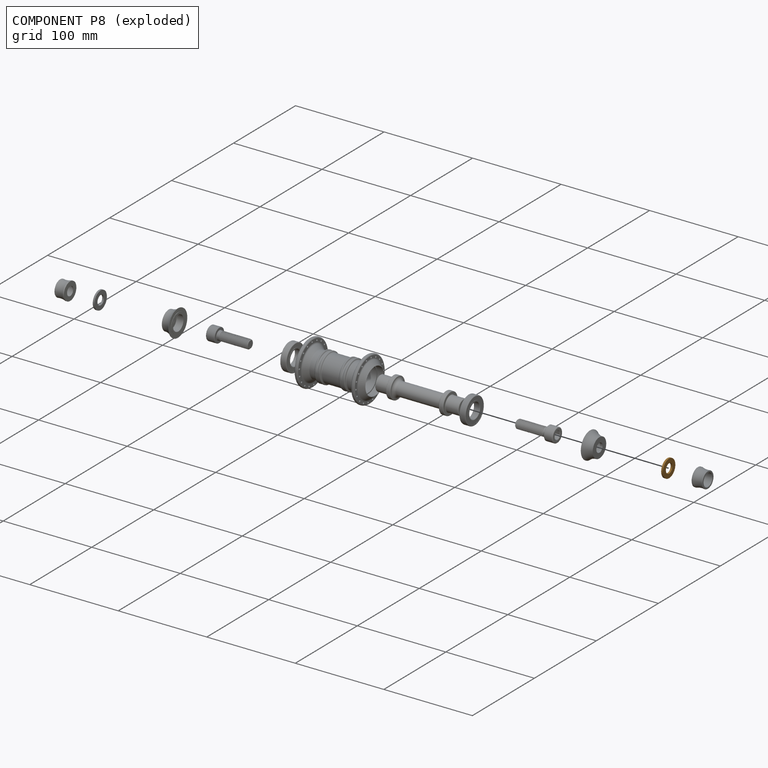
[diagram: component P8 — exploded]
COMPONENT P8 — geometry summary ("M10-Washer001"; no construction recipe available for this part):
  bounding box: 20.0 x 20.0 x 2.0 mm
  tessellated surface: 1,008 triangles
  volume: 455 mm^3 (57% of its bounding box)
  symmetry: revolution-symmetric about the x axis through its bounding-box center; 2-fold rotationally symmetric about the y axis; mirror-symmetric across its x mid-plane, y mid-plane, z mid-plane
Held by: FASTENED mate "Joint006" to P3; FASTENED mate "Joint007" to P5.
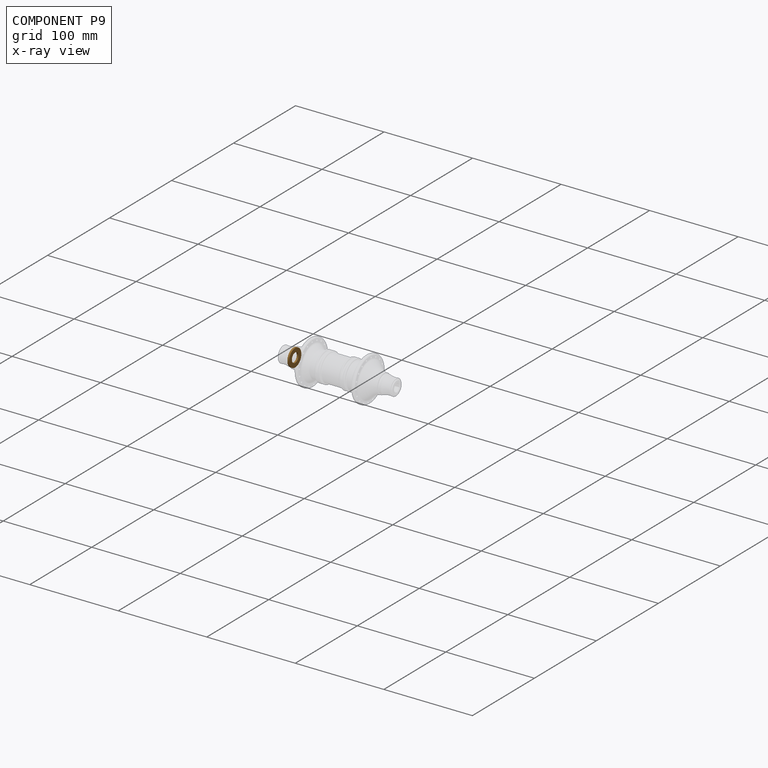
[diagram: component P9 — x-ray view]
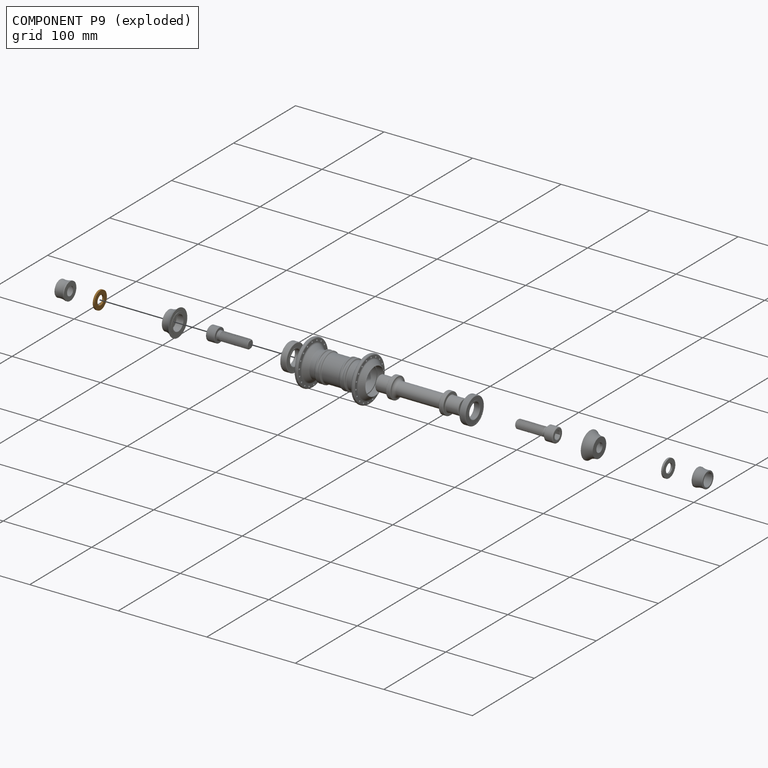
[diagram: component P9 — exploded]
COMPONENT P9 — geometry summary ("M10-Washer002"; no construction recipe available for this part):
  bounding box: 20.0 x 20.0 x 2.0 mm
  tessellated surface: 1,008 triangles
  volume: 455 mm^3 (57% of its bounding box)
  symmetry: revolution-symmetric about the x axis through its bounding-box center; 2-fold rotationally symmetric about the y axis; mirror-symmetric across its x mid-plane, y mid-plane, z mid-plane
Held by: FASTENED mate "Joint005" to P4; FASTENED mate "Joint008" to P6.
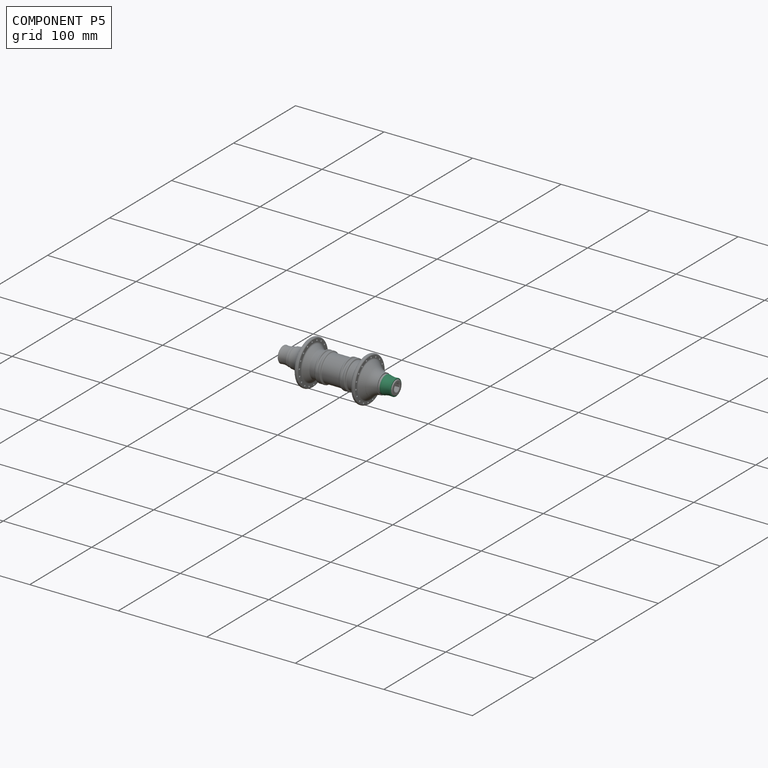
[diagram: component P5 — assembled]
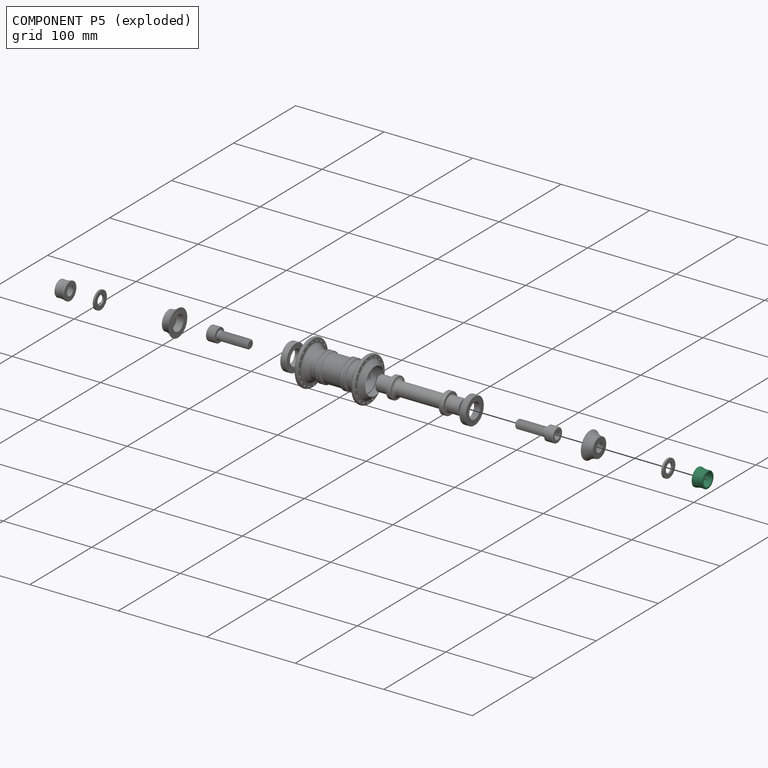
[diagram: component P5 — exploded]
COMPONENT P5 — recipe-attached ("Cover_bolt001", modeled in this document).
Held by: FASTENED mate "Joint007" to P8; FASTENED mate "Joint010" to P10.
Construction recipe (the document's own serialized feature program — sketch geometry with constraints, then the solid features built on it; lengths are millimeters unless a unit is written):

FEATURE [Sketcher::SketchObject] Sketch012
  ArcFitTolerance = 1e-06
  AttachmentSupport = -> [XZ_Plane004]
  FullyConstrained = true
  MakeInternals = false
  MapMode = 5
  Placement = pos=(0,0,0) rot=(1,0,0;1.5708rad)
  sketch-geometry (5):
    g0: LineSegment StartX=0 StartY=0 StartZ=0 EndX=-11.5 EndY=0 EndZ=0
    g1: LineSegment StartX=-11.5 StartY=0 StartZ=0 EndX=-11.5 EndY=9.25 EndZ=0
    g2: LineSegment StartX=0 StartY=0 StartZ=0 EndX=0 EndY=10 EndZ=0
    g3: LineSegment StartX=0 StartY=10 StartZ=0 EndX=-1.3 EndY=10 EndZ=0
    g4: ArcOfCircle CenterX=-7.81788 CenterY=28.9081 CenterZ=0 NormalX=0 NormalY=0 NormalZ=1 AngleXU=0 Radius=20 StartAngle=4.52723 EndAngle=5.04435
  constraints (15):
    c: Coincident(g-1,g0)
    c: PointOnObject(g0,g-1)
    c: Coincident(g0,g1)
    c: Vertical(g1)
    c: Coincident(g0,g2)
    c: PointOnObject(g2,g-2)
    c: Coincident(g2,g3)
    c: Horizontal(g3)
    c: Coincident(g4,g3)
    c: Coincident(g4,g1)
    c: DistanceX(g0,g0) = 11.5
    c: DistanceY(g1,g1) = 9.25
    c: DistanceY(g2,g2) = 10
    c: DistanceX(g3,g3) = 1.3
    c: Radius(g4) = 20
FEATURE [PartDesign::Revolution] Revolution003
  Angle = 360
  Angle2 = 60
  Axis = (1,0,0)
  Base = (0,0,0)
  Placement = pos=(0,0,0) rot=(1,0,0;1.5708rad)
  Profile = -> Sketch012
  ReferenceAxis = -> X_Axis004
  Refine = true
  Suppressed = false
  Type = 0
FEATURE [Sketcher::SketchObject] Sketch013
  ArcFitTolerance = 1e-06
  AttachmentSupport = -> [Revolution003]
  FullyConstrained = true
  MakeInternals = false
  MapMode = 5
  Placement = pos=(-11.5,0,0) rot=(0.707107,0,-0.707107;3.14159rad)
  sketch-geometry (1):
    g0: Circle CenterX=0 CenterY=0 CenterZ=0 NormalX=0 NormalY=0 NormalZ=1 AngleXU=0 Radius=5
  constraints (2):
    c: Diameter(g0) = 10
    c: Coincident(g0,g-1)
FEATURE [PartDesign::Hole] Hole
  BaseFeature = -> Revolution003
  CustomThreadClearance = 0
  Depth = 61.5634
  DepthType = 1
  Diameter = 10
  DrillForDepth = false
  DrillPoint = 1
  DrillPointAngle = 118
  HoleCutCountersinkAngle = 90
  HoleCutCustomValues = false
  HoleCutDepth = 10.3
  HoleCutDiameter = 14.5
  HoleCutType = 1
  ModelThread = false
  Placement = pos=(0,0,0) rot=(1,0,0;1.5708rad)
  Profile = -> Sketch013
  Refine = true
  Suppressed = false
  Tapered = false
  TaperedAngle = 90
  ThreadClass = 0
  ThreadDepth = 61.5634
  ThreadDepthType = 0
  ThreadDirection = 0
  ThreadFit = 0
  ThreadSize = 0
  ThreadType = 0
  Threaded = false
  UseCustomThreadClearance = false
FEATURE [PartDesign::Fillet] Fillet001
  Base = -> Hole [Edge1]
  BaseFeature = -> Hole
  Placement = pos=(0,0,0) rot=(1,0,0;1.5708rad)
  Radius = 0.5
  Refine = true
  SupportTransform = false
  Suppressed = false
  UseAllEdges = false
FEATURE [PartDesign::Body] Body003  label="Cover_bolt"
  AllowCompound = false
  Group = -> [Sketch012,Revolution003,Sketch013,Hole,Fillet001]
  Origin = -> Origin004
  Tip = -> Fillet001
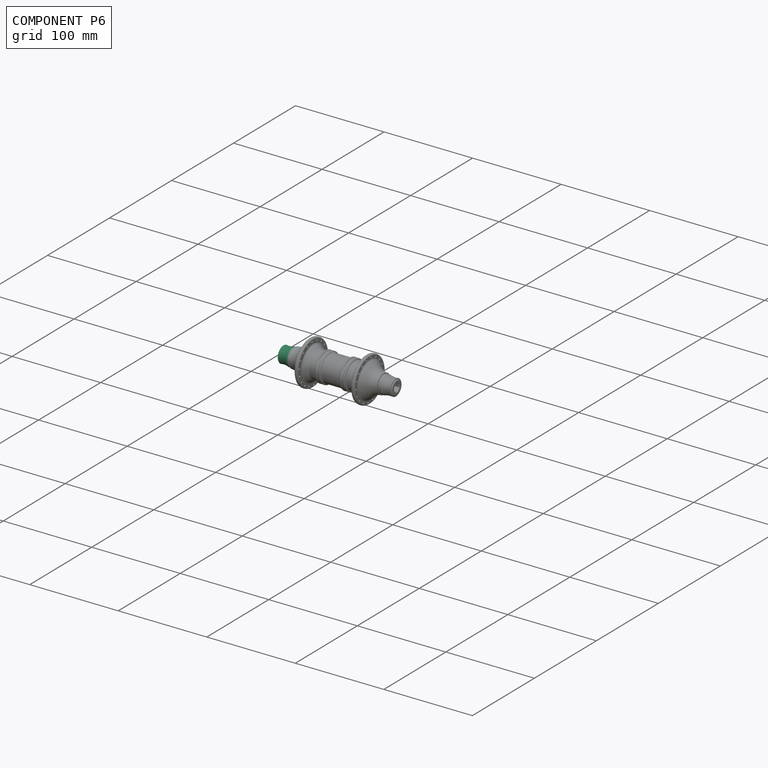
[diagram: component P6 — assembled]
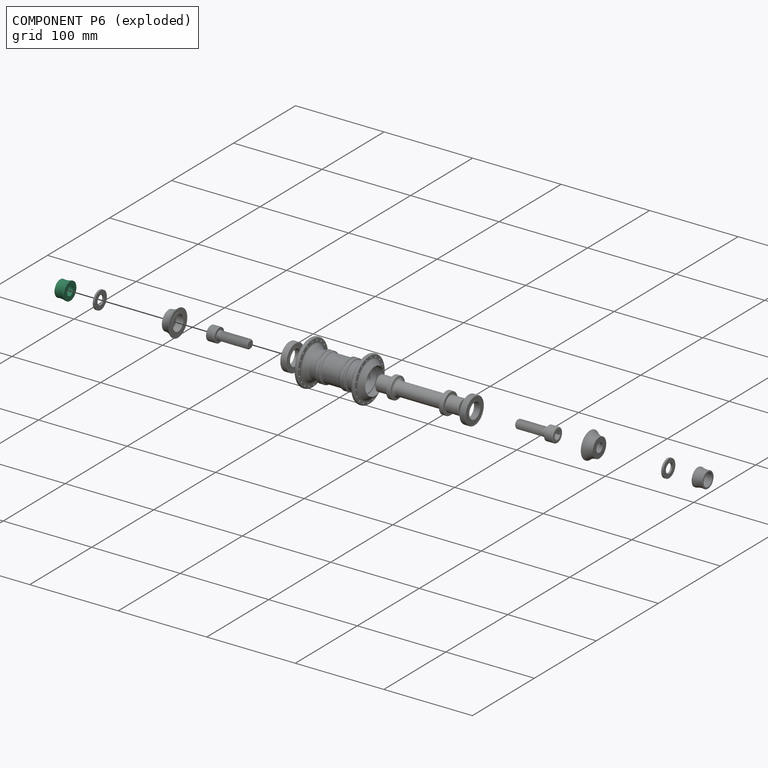
[diagram: component P6 — exploded]
COMPONENT P6 — same part as P5; its construction recipe is shown at P5.
Held by: FASTENED mate "Joint008" to P9; FASTENED mate "Joint009" to P11.
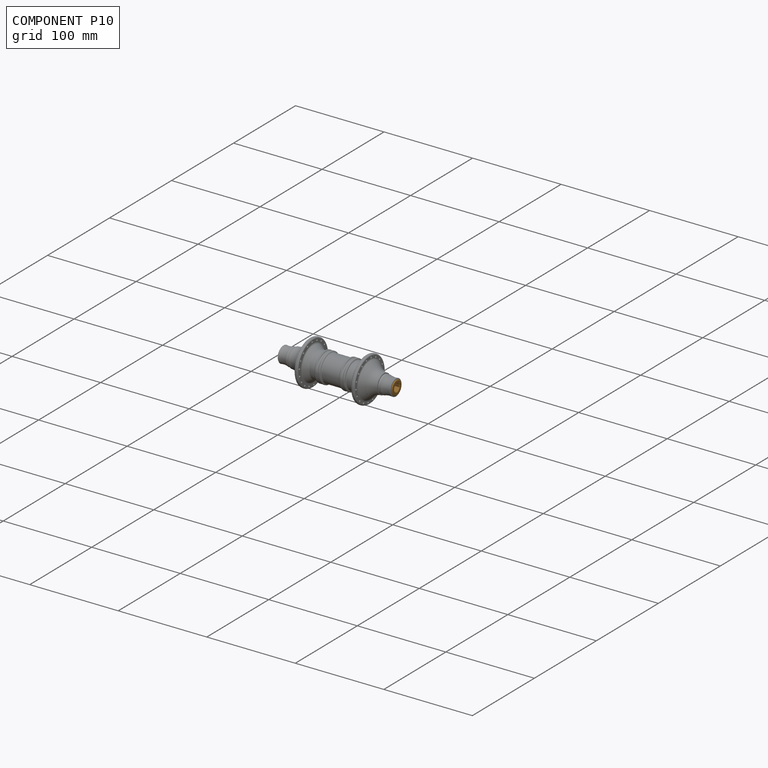
[diagram: component P10 — assembled]
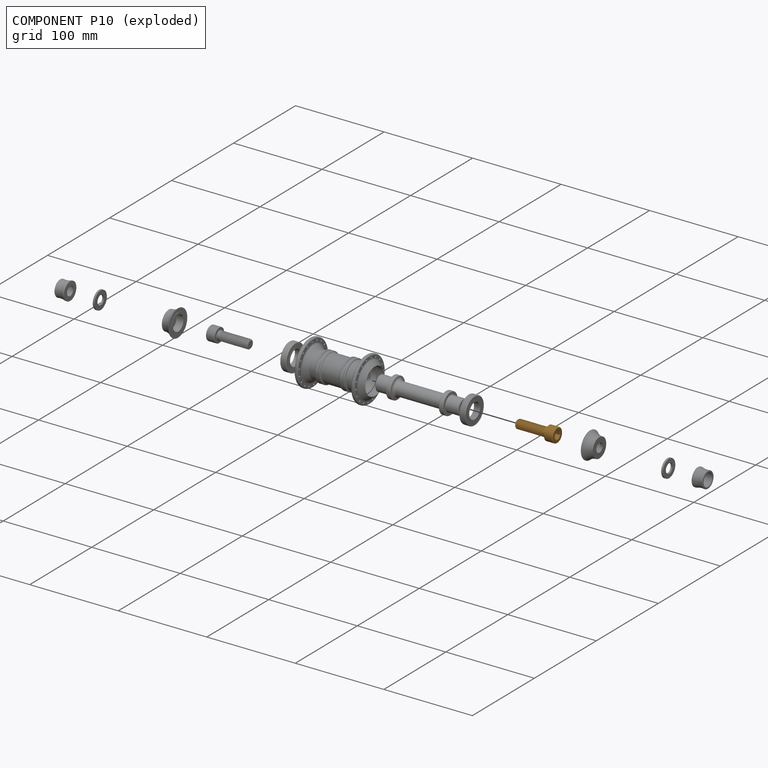
[diagram: component P10 — exploded]
COMPONENT P10 — geometry summary ("M10x35-Screw001"; no construction recipe available for this part):
  bounding box: 45.0 x 16.0 x 16.0 mm
  tessellated surface: 184,502 triangles
  volume: 3961 mm^3 (34% of its bounding box)
  symmetry: revolution-symmetric about the x axis through its bounding-box center
Held by: FASTENED mate "Joint010" to P5.
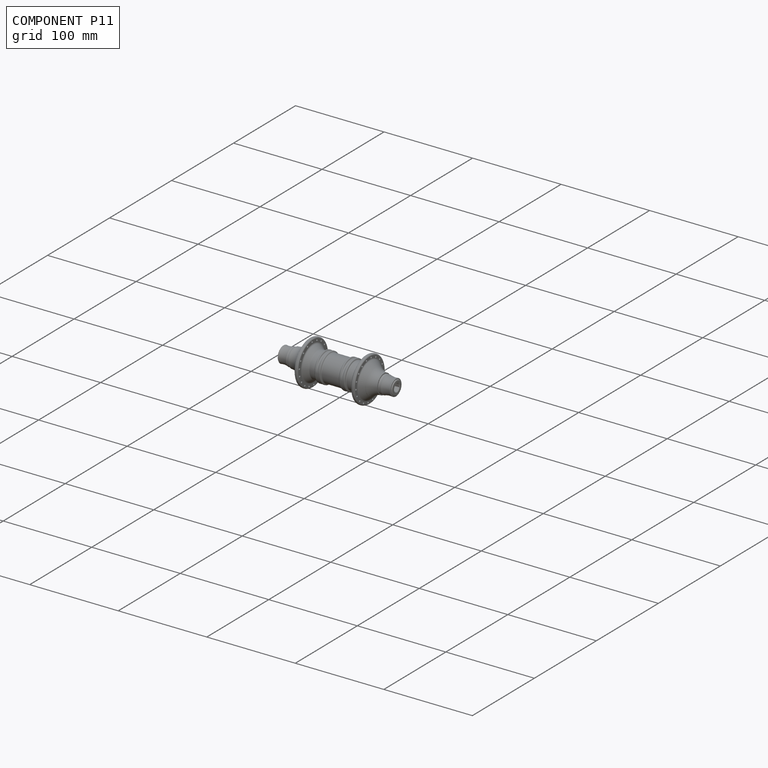
[diagram: component P11 — assembled]
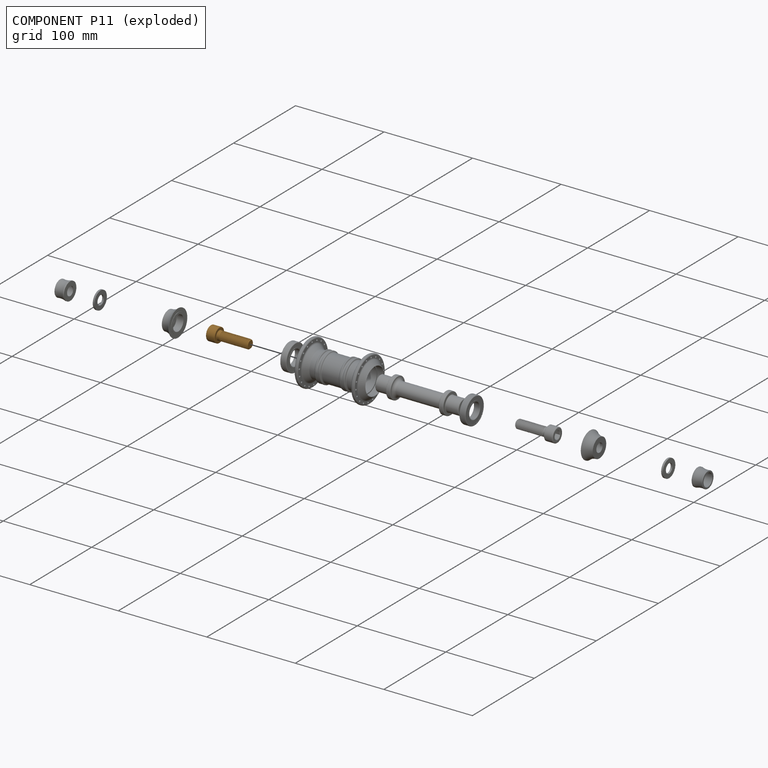
[diagram: component P11 — exploded]
COMPONENT P11 — geometry summary ("M10x35-Screw002"; no construction recipe available for this part):
  bounding box: 45.0 x 16.0 x 16.0 mm
  tessellated surface: 184,502 triangles
  volume: 3961 mm^3 (34% of its bounding box)
  symmetry: revolution-symmetric about the x axis through its bounding-box center
Held by: FASTENED mate "Joint009" to P6.
PROVENANCE & LICENSES
Assembly and component geometry: a FreeCAD (.FCStd) document from a public repository crawl; components, placements and joints were extracted with FreeCAD and each solid tessellated.
Construction recipes: the document's own serialized feature recipes (and, for linked parts, the recipes of companion documents from the same project).
License: as declared in the source repository (recorded in the dataset sidecar).
Joints: native FreeCAD joints and A2plus constraints are mapped to standard mate types.
Verification: 6 of this assembly's 12 components carry a construction recipe (6 from this document itself); the rest are geometry-only. Every component's tessellation passed the extraction mesh gates (mesh-volume checksum against the B-rep where available, bounding-box inflation <= 2%).
Renders: orthographic iso camera (az 35 / el 25); the floor grid conveys scale (grid pitch printed in each image; no ruler). In the exploded view each component is displaced by its stored offset vector: the offsets alone carry the explosion direction (mate normal/axis signs are not orientation cues and do not encode it), and separation distances are assigned per mate-chain, not proportionally to assembly-order depth.
